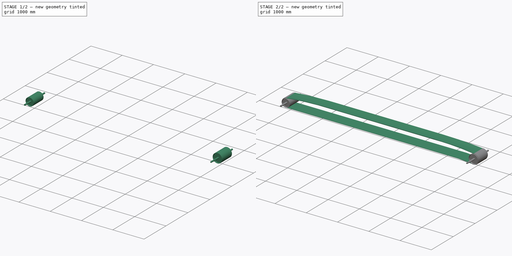
[diagram: build sequence overview — one tinted view per stage of 2, left to right]
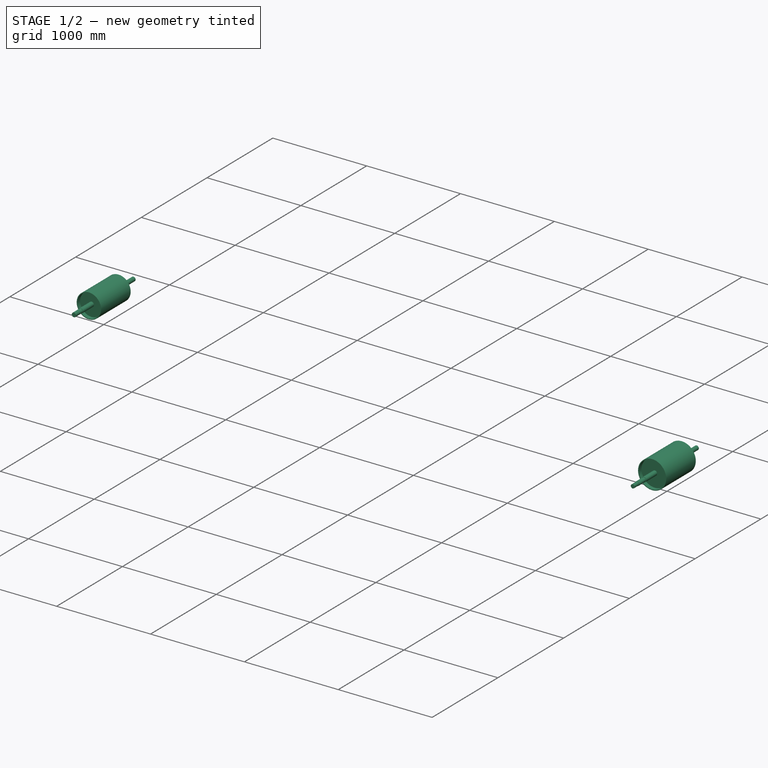
[diagram: stage 1 of 2 — iso view after this stage's code; geometry added in this stage tinted green]
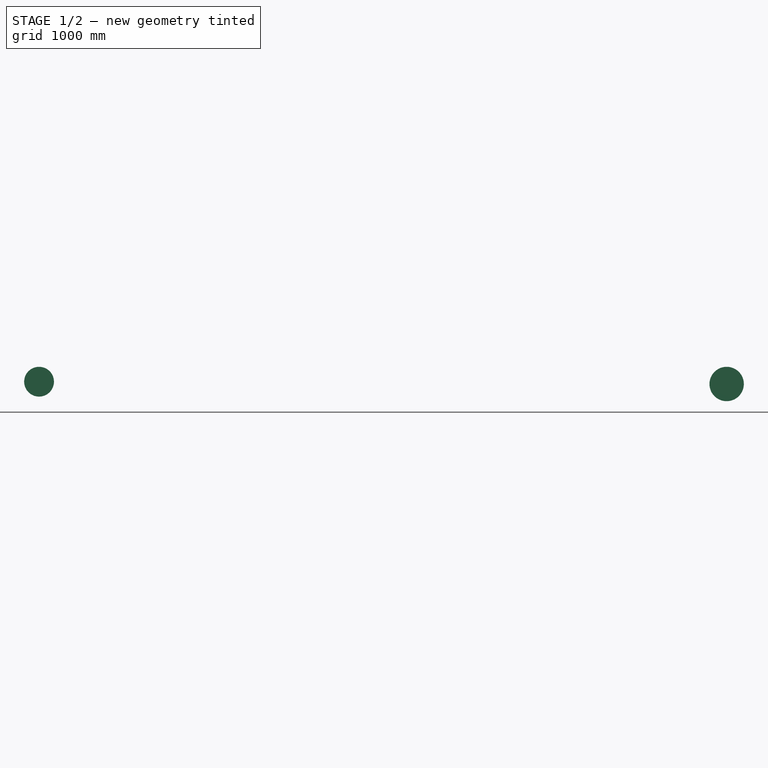
[diagram: stage 1 of 2 — front view after this stage's code; geometry added in this stage tinted green]
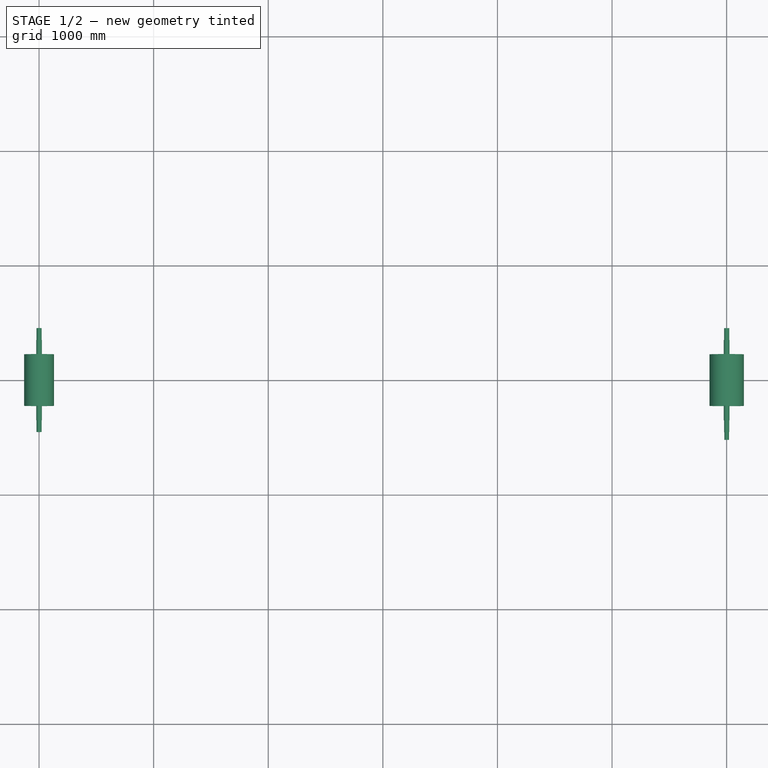
[diagram: stage 1 of 2 — top view after this stage's code; geometry added in this stage tinted green]
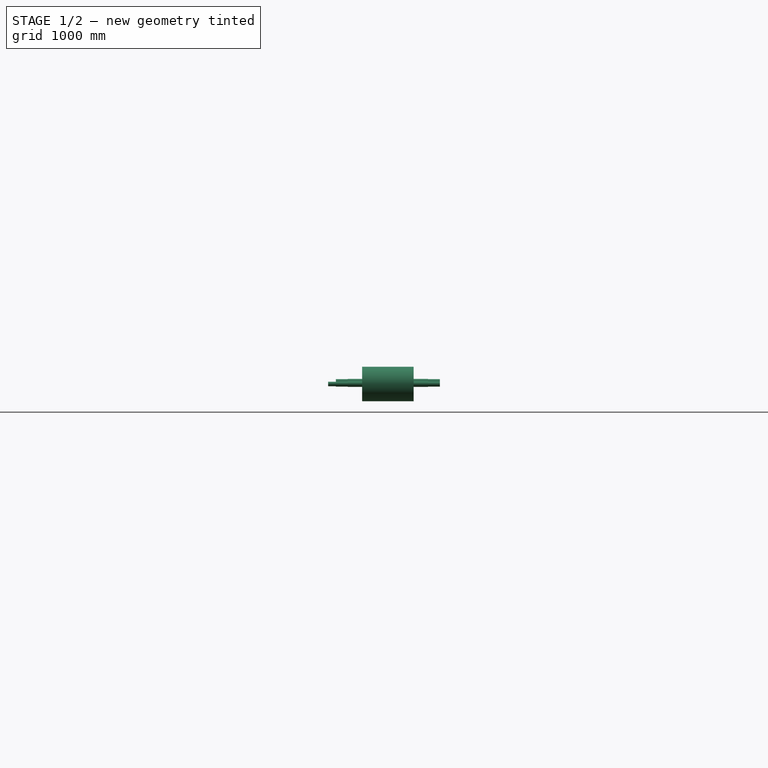
[diagram: stage 1 of 2 — right view after this stage's code; geometry added in this stage tinted green]
FCSTD DOCUMENT  (FreeCAD 0.21R33668 +26 (Git))
Label: BeltCv_Assy
License: All rights reserved
LicenseURL: http://en.wikipedia.org/wiki/All_rights_reserved
objects: Sketcher::SketchObject×7, Part::Extrusion×2, Part::FeaturePython×2, Part::Sweep×1, Spreadsheet::Sheet×1
note: 12 computed .brp shape members not serialized (recipe doc carries the construction recipe); baked Part::Feature solids carry a one-line shape summary decoded from their .brp

FEATURE [Spreadsheet::Sheet] Spreadsheet
  cells = A2='CenterDistance C0; B2(C0)=6000; A3='BeltWidth B0; B3(B0)=400; C3=400; D3=450; E3=500; F3=600; G3=700; H3=750; I3=800; J3=900; K3=1000; A4='Belt b1; B4(b1)=145; C4=145; D4=165; E4=180; F4=210; G4=250; H4=265; I4=280; J4=315; K4=345; A5='Belt b2; B5(b2)=127.5; C5==(C3 - C4) / 2; D5==(D3 - D4) / 2; E5==(E3 - E4) / 2; F5==(F3 - F4) / 2; G5==(G3 - G4) / 2; H5==(H3 - H4) / 2; I5==(I3 - I4) / 2; J5==(J3 - J4) / 2; K5==(K3 - K4) / 2; A6='BeltThickness t0; B6(t0)=10; C6=10; D6=10; E6=10; F6=10; G6=10; H6=10; I6=10; J6=10; K6=10; A7='HeadPullyDia D0; B7(D0)=300; C7=300; D7=300; E7=300; F7=360; G7=360; H7=460; I7=460; J7=520; K7=520; A8='TailPullyDia d1; B8(d1)=260; C8=260; D8=260; E8=300; F8=300; G8=300; H8=390; I8=390; J8=440; K8=440; A9='SnapPullyDia d2; B9(d2)=200; C9=200; D9=200; E9=200; F9=200; G9=200; H9=200; I9=200; J9=200; K9=200; A10='SnapPully Ls; B10(Ls)=500; C10=500; D10=500; E10=500; F10=500; G10=500; H10=500; I10=500; J10=500; K10=500; A11='SnapPully h0; B11(h0)=180; C11=180; D11=180; E11=180; F11=180; G11=180; H11=180; I11=180; J11=180; K11=180
FEATURE [Part::FeaturePython] Take_upPulley  # WARN: FeaturePython — macro-defined, semantics opaque (R4)
  A = 50
  B = 103.5
  C = 700
  D = 260
  E = 0
  L = 450
  Placement = pos=(0,0,20) rot=(0,0,1;1.5708rad)
  d1 = 50
  d2 = 45
  d3 = 0
  t1 = 9
  t2 = 9
  t3 = 8
  t4 = 8
  expr: .Placement.Base.z = (Spreadsheet.D0 - Spreadsheet.d1) / 2
  expr: D = Spreadsheet.d1
  expr: L = Spreadsheet.B0 + 50
FEATURE [Part::FeaturePython] DrivePulley  # WARN: FeaturePython — macro-defined, semantics opaque (R4)
  A = 50
  B = 103.5
  C = 700
  D = 300
  E = 68
  L = 450
  Placement = pos=(6000,0,0) rot=(0,0,1;1.5708rad)
  d1 = 50
  d2 = 45
  d3 = 40
  t1 = 9
  t2 = 9
  t3 = 8
  t4 = 8
  expr: .Placement.Base.x = Spreadsheet.C0
  expr: D = Spreadsheet.D0
  expr: L = Spreadsheet.B0 + 50
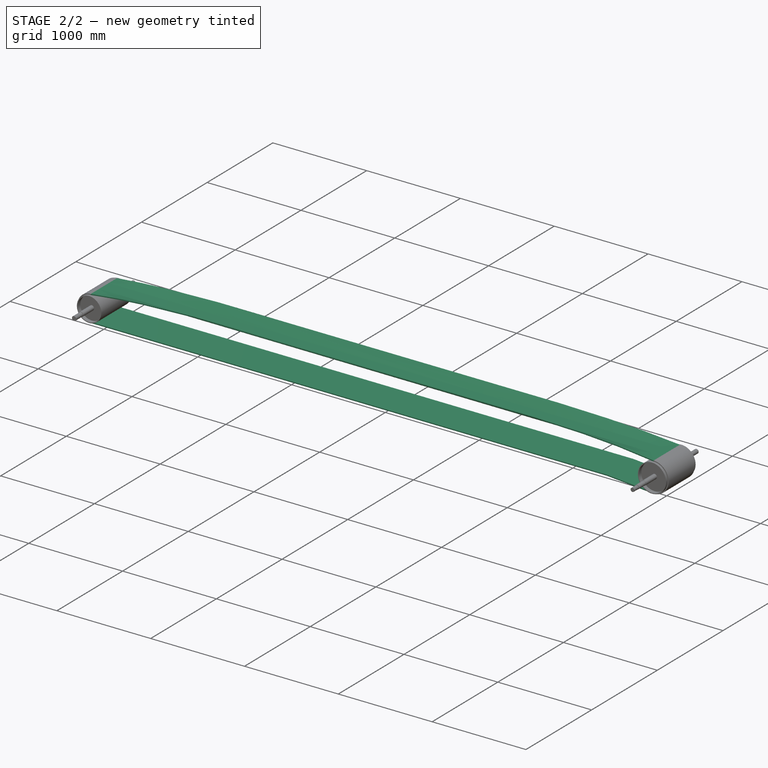
[diagram: stage 2 of 2 — iso view after this stage's code; geometry added in this stage tinted green]
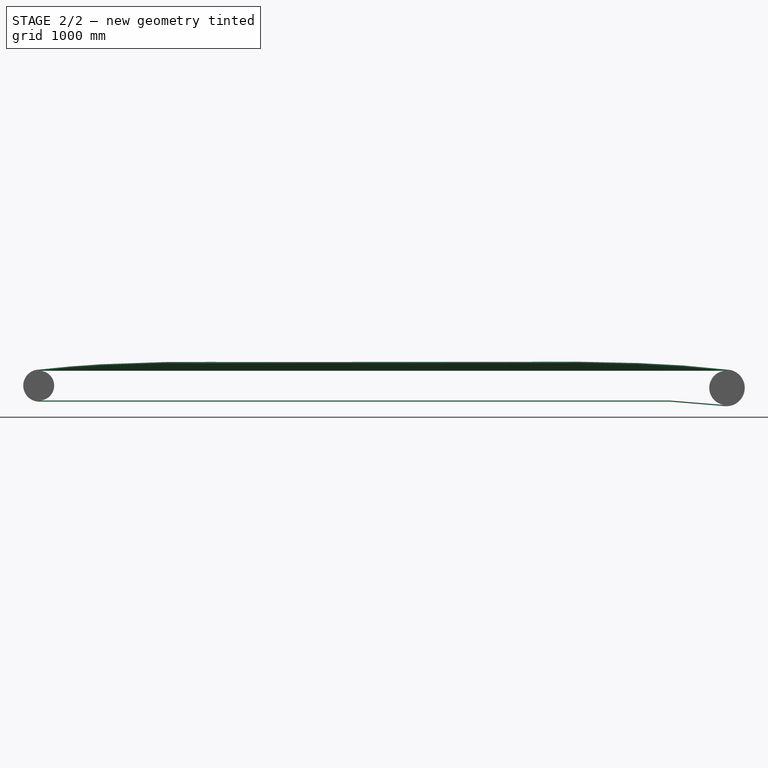
[diagram: stage 2 of 2 — front view after this stage's code; geometry added in this stage tinted green]
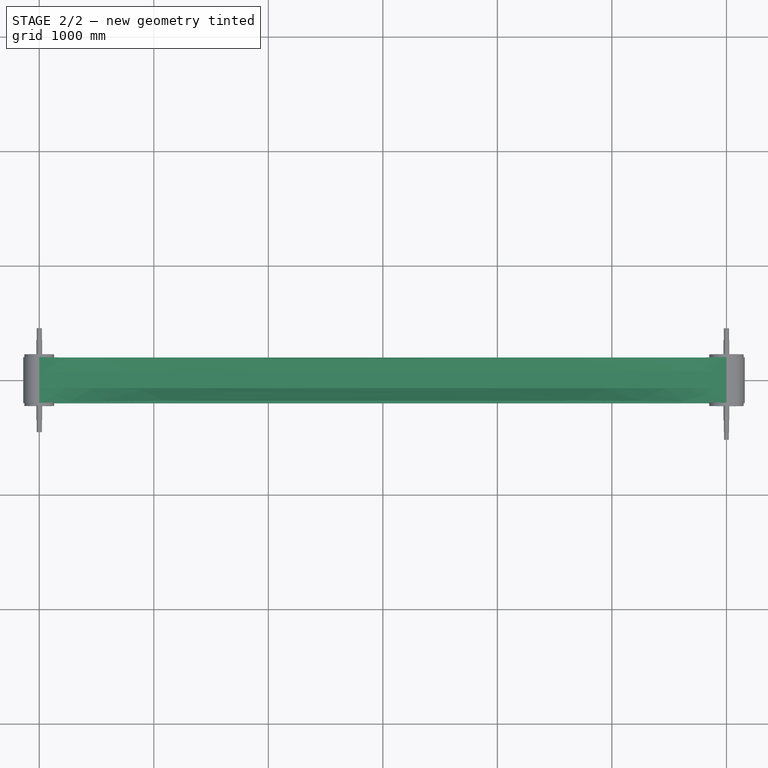
[diagram: stage 2 of 2 — top view after this stage's code; geometry added in this stage tinted green]
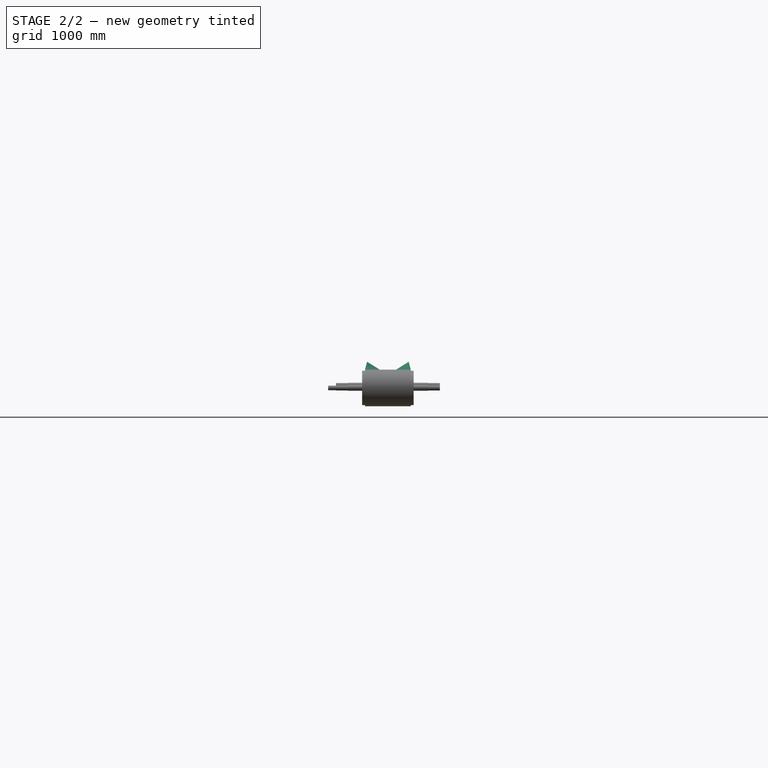
[diagram: stage 2 of 2 — right view after this stage's code; geometry added in this stage tinted green]
FEATURE [Sketcher::SketchObject] Sketch
  FullyConstrained = true
  Placement = pos=(0,0,0) rot=(0.57735,0.57735,0.57735;2.0944rad)
  expr: Constraints[1] = Spreadsheet.B0
  expr: Constraints[2] = Spreadsheet.D0 / 2
  sketch-geometry (1):
    g0: LineSegment StartX=-200 StartY=150 StartZ=0 EndX=200 EndY=150 EndZ=0
  constraints (3):
    c: Symmetric(g0,g0,g-2)
    c: DistanceX(g0,g0) = 400
    c: Distance(g-1,g0) = 150
FEATURE [Sketcher::SketchObject] Sketch001
  FullyConstrained = true
  Placement = pos=(6000,0,0) rot=(0.57735,0.57735,0.57735;2.0944rad)
  expr: .Placement.Base.x = Spreadsheet.C0
  expr: Constraints[1] = Spreadsheet.B0
  expr: Constraints[2] = Spreadsheet.D0 / 2
  sketch-geometry (1):
    g0: LineSegment StartX=-200 StartY=150 StartZ=0 EndX=200 EndY=150 EndZ=0
  constraints (3):
    c: Symmetric(g0,g0,g-2)
    c: DistanceX(g0,g0) = 400
    c: Distance(g-1,g0) = 150
FEATURE [Sketcher::SketchObject] Sketch002
  FullyConstrained = true
  Placement = pos=(1000,0,0) rot=(0.57735,0.57735,0.57735;2.0944rad)
  expr: Constraints[5] = Spreadsheet.b2
  expr: Constraints[6] = Spreadsheet.b2
  expr: Constraints[7] = Spreadsheet.D0 / 2
  expr: Constraints[8] = Spreadsheet.b1
  sketch-geometry (3):
    g0: LineSegment StartX=-182.918 StartY=213.75 StartZ=0 EndX=-72.5 EndY=150 EndZ=0
    g1: LineSegment StartX=-72.5 StartY=150 StartZ=0 EndX=72.5 EndY=150 EndZ=0
    g2: LineSegment StartX=72.5 StartY=150 StartZ=0 EndX=182.918 EndY=213.75 EndZ=0
  constraints (9):
    c: Coincident(g0,g1)
    c: Coincident(g1,g2)
    c: Angle(g2,g1) = 2.61799
    c: Angle(g1,g0) = 2.61799
    c: Symmetric(g1,g0,g-2)
    c: Distance(g2) = 127.5
    c: Distance(g0) = 127.5
    c: DistanceY(g-1,g1) = 150
    c: DistanceX(g1,g1) = 145
FEATURE [Sketcher::SketchObject] Sketch003
  FullyConstrained = true
  Placement = pos=(5000,0,0) rot=(0.57735,0.57735,0.57735;2.0944rad)
  expr: .Placement.Base.x = Spreadsheet.C0 - 1000
  expr: Constraints[5] = Spreadsheet.b2
  expr: Constraints[6] = Spreadsheet.b2
  expr: Constraints[7] = Spreadsheet.D0 / 2
  expr: Constraints[8] = Spreadsheet.b1
  sketch-geometry (3):
    g0: LineSegment StartX=-182.918 StartY=213.75 StartZ=0 EndX=-72.5 EndY=150 EndZ=0
    g1: LineSegment StartX=-72.5 StartY=150 StartZ=0 EndX=72.5 EndY=150 EndZ=0
    g2: LineSegment StartX=72.5 StartY=150 StartZ=0 EndX=182.918 EndY=213.75 EndZ=0
  constraints (9):
    c: Coincident(g0,g1)
    c: Coincident(g1,g2)
    c: Angle(g2,g1) = 2.61799
    c: Angle(g1,g0) = 2.61799
    c: Symmetric(g1,g0,g-2)
    c: Distance(g2) = 127.5
    c: Distance(g0) = 127.5
    c: DistanceY(g-1,g1) = 150
    c: DistanceX(g1,g1) = 145
FEATURE [Sketcher::SketchObject] Sketch004
  FullyConstrained = true
  Placement = pos=(6000,0,0) rot=(1,0,0;1.5708rad)
  expr: .Placement.Base.x = Spreadsheet.C0
  expr: Constraints[0] = Spreadsheet.D0
  expr: Constraints[12] = Spreadsheet.C0
  expr: Constraints[14] = Spreadsheet.Ls
  expr: Constraints[2] = Spreadsheet.d1
  expr: Constraints[8] = Spreadsheet.d2 / 2
  sketch-geometry (6):
    g0: ArcOfCircle CenterX=0 CenterY=0 CenterZ=0 NormalX=0 NormalY=0 NormalZ=1 AngleXU=0 Radius=150 StartAngle=4.63091 EndAngle=7.85398
    g1: ArcOfCircle CenterX=-6000 CenterY=20 CenterZ=0 NormalX=0 NormalY=0 NormalZ=1 AngleXU=0 Radius=130 StartAngle=1.5708 EndAngle=4.71239
    g2: LineSegment StartX=-6000 StartY=150 StartZ=0 EndX=0 EndY=150 EndZ=0
    g3: LineSegment StartX=-12.2089 StartY=-149.502 StartZ=0 EndX=-491.861 EndY=-110.332 EndZ=0
    g4: LineSegment StartX=-500 StartY=-110 StartZ=0 EndX=-6000 EndY=-110 EndZ=0
    g5: ArcOfCircle CenterX=-500 CenterY=-210 CenterZ=0 NormalX=0 NormalY=0 NormalZ=1 AngleXU=0 Radius=100 StartAngle=1.48931 EndAngle=1.5708
  constraints (17):
    c: Diameter(g0) = 300
    c: Coincident(g-1,g0)
    c: Diameter(g1) = 260
    c: Horizontal(g2)
    c: PointOnObject(g3,g0)
    c: Horizontal(g4)
    c: Tangent(g3,g5) = -1.5708
    c: Tangent(g4,g5) = -1.5708
    c: Radius(g5) = 100
    c: Coincident(g1,g4)
    c: Coincident(g0,g2)
    c: Tangent(g0,g3) = 1.5708
    c: DistanceX(g1,g0) = 6000
    c: Vertical(g0,g0)
    c: DistanceX(g5,g0) = 500
    c: Vertical(g1,g1)
    c: Tangent(g1,g2) = 1.5708
FEATURE [Sketcher::SketchObject] Sketch005
  FullyConstrained = true
  Placement = pos=(6000,0,0) rot=(1,0,0;1.5708rad)
  expr: .Placement.Base.x = Spreadsheet.C0
  expr: Constraints[0] = Spreadsheet.D0
  expr: Constraints[10] = Spreadsheet.Ls
  expr: Constraints[20] = Spreadsheet.t0
  expr: Constraints[22] = Spreadsheet.t0
  expr: Constraints[29] = (Spreadsheet.D0 - Spreadsheet.d1) / 2
  expr: Constraints[2] = Spreadsheet.d1
  expr: Constraints[6] = Spreadsheet.d2 / 2
  expr: Constraints[8] = Spreadsheet.C0
  sketch-geometry (12):
    g0: ArcOfCircle CenterX=0 CenterY=0 CenterZ=0 NormalX=0 NormalY=0 NormalZ=1 AngleXU=0 Radius=150 StartAngle=4.6309 EndAngle=7.85398
    g1: ArcOfCircle CenterX=-6000 CenterY=20 CenterZ=0 NormalX=0 NormalY=0 NormalZ=1 AngleXU=0 Radius=130 StartAngle=1.5708 EndAngle=4.71239
    g2: LineSegment StartX=-12.2092 StartY=-149.502 StartZ=0 EndX=-491.861 EndY=-110.332 EndZ=0
    g3: LineSegment StartX=-500 StartY=-110 StartZ=0 EndX=-6000 EndY=-110 EndZ=0
    g4: ArcOfCircle CenterX=-500 CenterY=-210 CenterZ=0 NormalX=0 NormalY=0 NormalZ=1 AngleXU=0 Radius=100 StartAngle=1.48931 EndAngle=1.5708
    g5: ArcOfCircle CenterX=-6000 CenterY=20 CenterZ=0 NormalX=0 NormalY=0 NormalZ=1 AngleXU=0 Radius=140 StartAngle=1.5708 EndAngle=4.71239
    g6: LineSegment StartX=-6000 StartY=-120 StartZ=0 EndX=-500 EndY=-120 EndZ=0
    g7: ArcOfCircle CenterX=-500 CenterY=-210 CenterZ=0 NormalX=0 NormalY=0 NormalZ=1 AngleXU=0 Radius=90 StartAngle=1.48931 EndAngle=1.5708
    g8: LineSegment StartX=-492.675 StartY=-120.299 StartZ=0 EndX=-13.023 EndY=-159.469 EndZ=0
    g9: ArcOfCircle CenterX=0 CenterY=0 CenterZ=0 NormalX=0 NormalY=0 NormalZ=1 AngleXU=0 Radius=160 StartAngle=4.63091 EndAngle=7.85398
    g10: LineSegment StartX=0 StartY=150 StartZ=0 EndX=0 EndY=160 EndZ=0
    g11: LineSegment StartX=-6000 StartY=150 StartZ=0 EndX=-6000 EndY=160 EndZ=0
  constraints (32):
    c: Diameter(g0) = 300
    c: Coincident(g-1,g0)
    c: Diameter(g1) = 260
    c: Horizontal(g3)
    c: Tangent(g2,g4) = -1.5708
    c: Tangent(g3,g4) = -1.5708
    c: Radius(g4) = 100
    c: Coincident(g1,g3)
    c: DistanceX(g1,g0) = 6000
    c: Vertical(g0,g0)
    c: DistanceX(g4,g0) = 500
    c: Vertical(g1,g1)
    c: Coincident(g5,g1)
    c: Tangent(g5,g6) = -1.5708
    c: Tangent(g6,g7) = 1.5708
    c: Tangent(g8,g9) = -1.5708
    c: PointOnObject(g9,g-2)
    c: Coincident(g10,g0)
    c: Coincident(g10,g9)
    c: Coincident(g9,g0)
    c: DistanceY(g10,g10) = 10
    c: Coincident(g4,g7)
    c: DistanceY(g5,g1) = 10
    c: Vertical(g1,g5)
    c: Coincident(g11,g1)
    c: Coincident(g11,g5)
    c: Tangent(g7,g8) = 1.5708
    c: Vertical(g1,g1)
    c: Parallel(g8,g2)
    c: DistanceY(g-1,g1) = 20
    c: Parallel(g6,g3)
    c: Coincident(g2,g0)
FEATURE [Sketcher::SketchObject] Sketch006
  FullyConstrained = true
  Placement = pos=(3000,0,0) rot=(0.57735,0.57735,0.57735;2.0944rad)
  expr: .Placement.Base.x = Spreadsheet.C0 / 2
  expr: Constraints[5] = Spreadsheet.b2
  expr: Constraints[6] = Spreadsheet.b2
  expr: Constraints[7] = Spreadsheet.D0 / 2
  expr: Constraints[8] = Spreadsheet.b1
  sketch-geometry (3):
    g0: LineSegment StartX=-182.918 StartY=213.75 StartZ=0 EndX=-72.5 EndY=150 EndZ=0
    g1: LineSegment StartX=-72.5 StartY=150 StartZ=0 EndX=72.5 EndY=150 EndZ=0
    g2: LineSegment StartX=72.5 StartY=150 StartZ=0 EndX=182.918 EndY=213.75 EndZ=0
  constraints (9):
    c: Coincident(g0,g1)
    c: Coincident(g1,g2)
    c: Angle(g2,g1) = 2.61799
    c: Angle(g1,g0) = 2.61799
    c: Symmetric(g1,g0,g-2)
    c: Distance(g2) = 127.5
    c: Distance(g0) = 127.5
    c: DistanceY(g-1,g1) = 150
    c: DistanceX(g1,g1) = 145
FEATURE [Part::Sweep] Sweep
  Frenet = false
  Sections = -> [Sketch,Sketch002,Sketch003,Sketch001,Sketch006]
  Solid = false
  Spine = -> Sketch004 [Edge2]
  Transition = 1
FEATURE [Part::Extrusion] Extrude002
  Base = -> Sweep
  Dir = (0,0,1)
  DirMode = 0
  FaceMakerClass = Part::FaceMakerBullseye
  LengthFwd = 10
  LengthRev = 0
  Solid = false
  Symmetric = false
FEATURE [Part::Extrusion] Extrude
  Base = -> Sketch005
  Dir = (0,-1,2e-16)
  DirMode = 2
  FaceMakerClass = Part::FaceMakerBullseye
  LengthFwd = 400
  LengthRev = 0
  Solid = true
  Symmetric = true
  expr: LengthFwd = Spreadsheet.B0
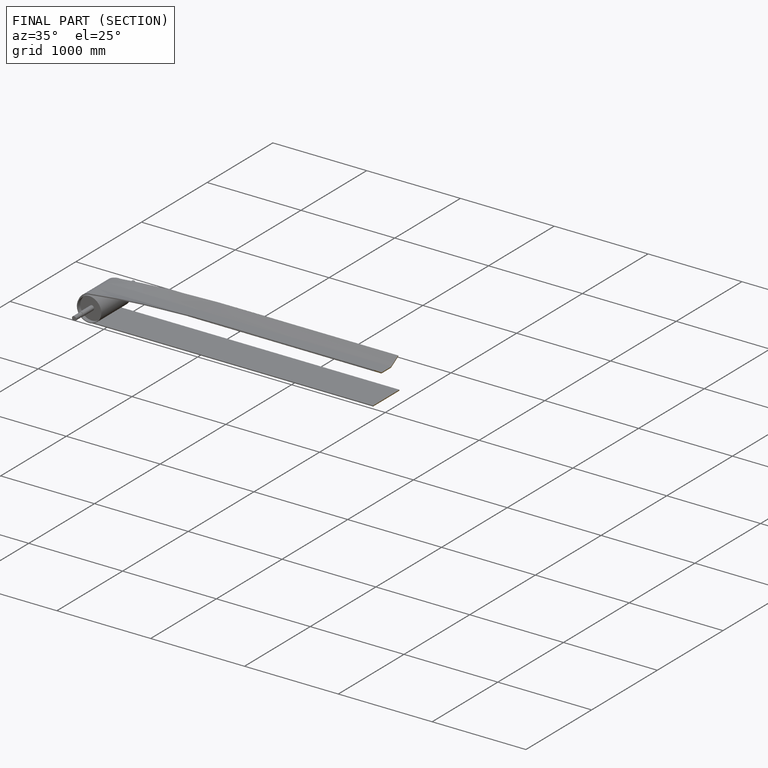
[diagram: finished part — half-section view (interior)]
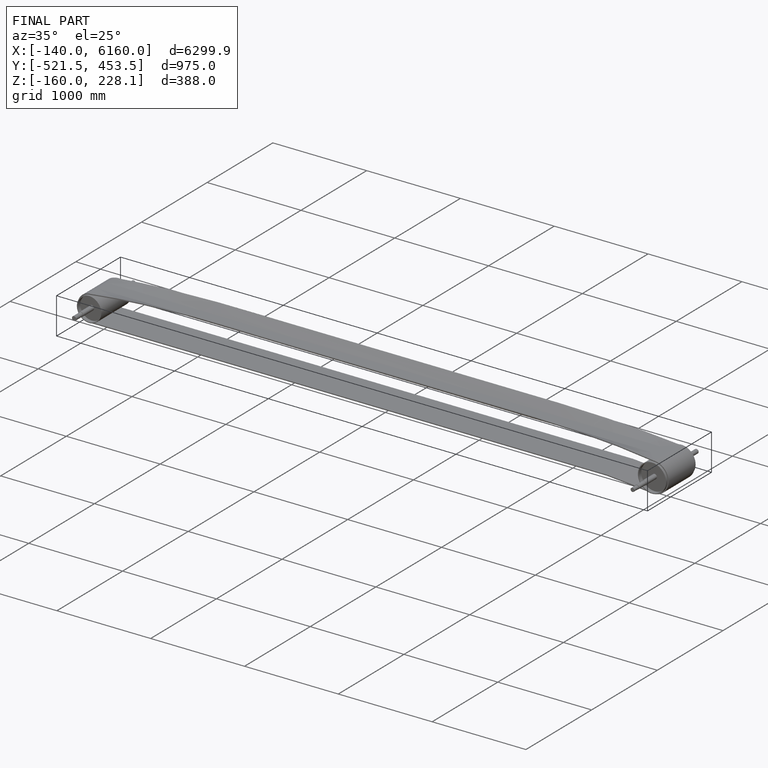
[diagram: finished part — iso view with bounding-box wireframe]
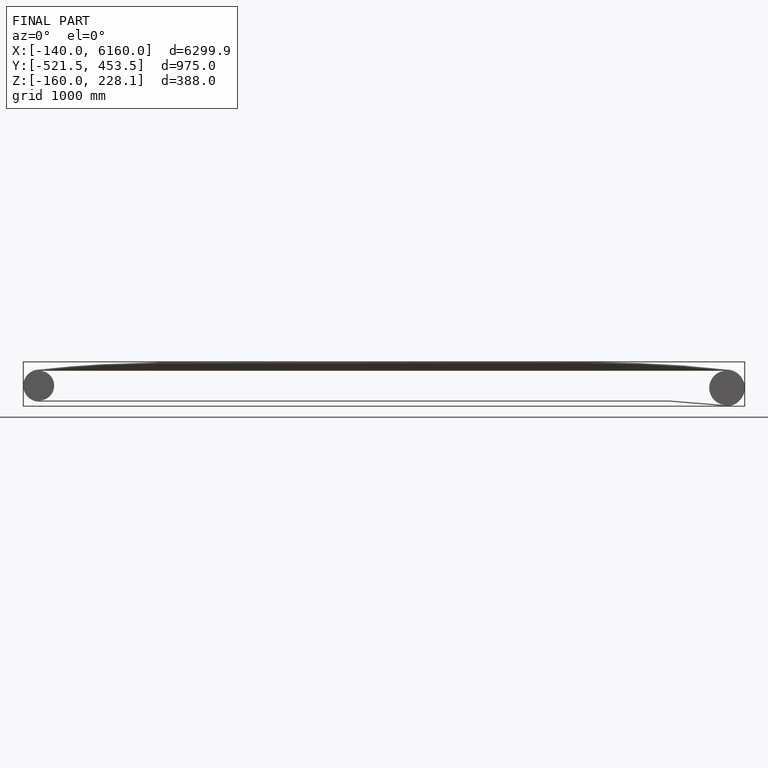
[diagram: finished part — front view with bounding-box wireframe]
